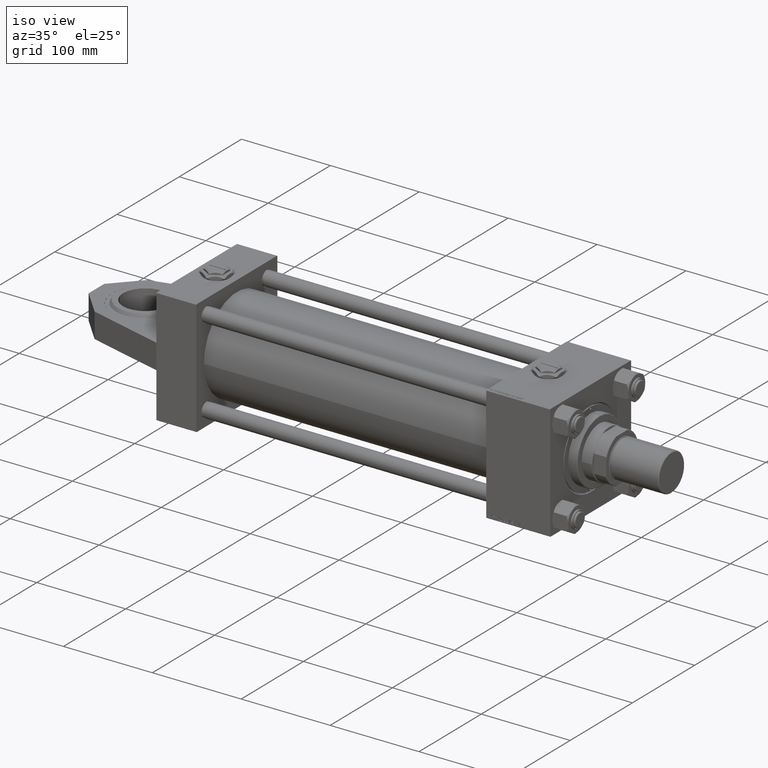
[diagram: clean part render]
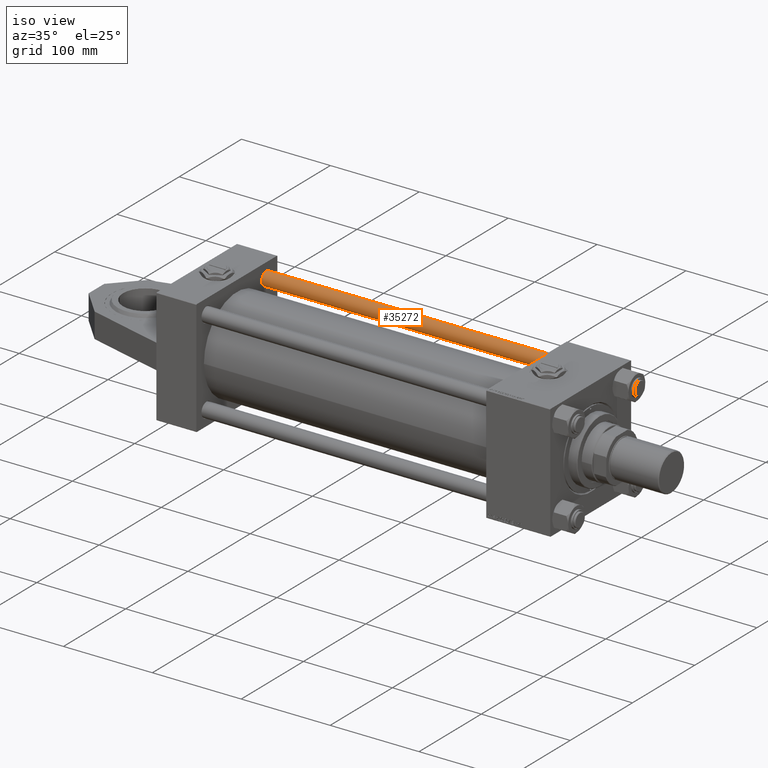
[diagram: same view with one face highlighted and labeled with its STEP entity id]
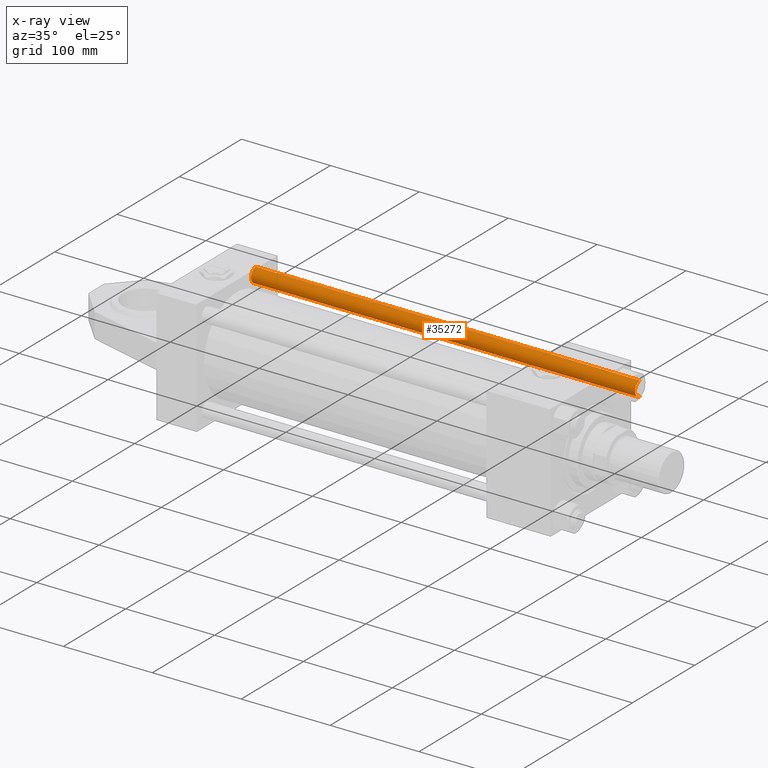
[diagram: x-ray of the same camera — body ghosted, the highlighted face saturated]
A machine part, iso view. The second image highlights one B-rep face of the part: STEP entity #35272.
The next image is the same camera in x-ray: the body ghosted, the highlighted face saturated — about 0% of this face is hidden behind the body in this view.
In plain terms, the highlighted cylindrical surface (edge-blend (fillet) strip) has radius 8 mm, axis along (1, 0, 0).
Its self-contained STEP definition (entity closure, byte-faithful):
#2589 = ORIENTED_EDGE ( 'NONE', *, *, #45665, .F. ) ;
#5396 = DIRECTION ( 'NONE',  ( 0.000000000000000000, 0.000000000000000000, -1.000000000000000000 ) ) ;
#7405 = ORIENTED_EDGE ( 'NONE', *, *, #20577, .T. ) ;
#7931 = LINE ( 'NONE', #36704, #45238 ) ;
#8052 = VERTEX_POINT ( 'NONE', #15845 ) ;
#8773 = ORIENTED_EDGE ( 'NONE', *, *, #21262, .T. ) ;
#9345 = EDGE_CURVE ( 'NONE', #8052, #28952, #7931, .T. ) ;
#9443 = AXIS2_PLACEMENT_3D ( 'NONE', #12034, #28967, #27922 ) ;
#9707 = VECTOR ( 'NONE', #28021, 1000.000000000000000 ) ;
#10401 = DIRECTION ( 'NONE',  ( -1.000000000000000000, 0.000000000000000000, 0.000000000000000000 ) ) ;
#12034 = CARTESIAN_POINT ( 'NONE',  ( 0.000000000000000000, 0.000000000000000000, 0.5000000000003335110 ) ) ;
#15790 = ORIENTED_EDGE ( 'NONE', *, *, #9345, .T. ) ;
#15845 = CARTESIAN_POINT ( 'NONE',  ( -8.000000000000000000, 0.000000000000000000, 432.5000000000001705 ) ) ;
#15945 = EDGE_LOOP ( 'NONE', ( #2589, #8773, #15790, #7405 ) ) ;
#16323 = AXIS2_PLACEMENT_3D ( 'NONE', #38208, #5396, #30626 ) ;
#18850 = CIRCLE ( 'NONE', #9443, 8.000000000000000000 ) ;
#20577 = EDGE_CURVE ( 'NONE', #28952, #33426, #18850, .T. ) ;
#21262 = EDGE_CURVE ( 'NONE', #38892, #8052, #41283, .T. ) ;
#26592 = CARTESIAN_POINT ( 'NONE',  ( -8.000000000000000000, 0.000000000000000000, 0.5000000000003335110 ) ) ;
#27922 = DIRECTION ( 'NONE',  ( 1.000000000000000000, 0.000000000000000000, 0.000000000000000000 ) ) ;
#28021 = DIRECTION ( 'NONE',  ( -0.000000000000000000, -0.000000000000000000, -1.000000000000000000 ) ) ;
#28952 = VERTEX_POINT ( 'NONE', #26592 ) ;
#28967 = DIRECTION ( 'NONE',  ( -0.000000000000000000, -0.000000000000000000, 1.000000000000000000 ) ) ;
#30568 = CYLINDRICAL_SURFACE ( 'NONE', #40291, 8.000000000000000000 ) ;
#30626 = DIRECTION ( 'NONE',  ( 1.000000000000000000, 0.000000000000000000, 0.000000000000000000 ) ) ;
#32352 = CARTESIAN_POINT ( 'NONE',  ( 8.000000000000000000, 9.797174393178823685E-16, 0.5000000000003335110 ) ) ;
#32867 = LINE ( 'NONE', #45239, #9707 ) ;
#33426 = VERTEX_POINT ( 'NONE', #32352 ) ;
#35272 = ADVANCED_FACE ( 'NONE', ( #35687 ), #30568, .T. ) ;
#35418 = CARTESIAN_POINT ( 'NONE',  ( 0.000000000000000000, 0.000000000000000000, 433.0000000000000000 ) ) ;
#35687 = FACE_OUTER_BOUND ( 'NONE', #15945, .T. ) ;
#36704 = CARTESIAN_POINT ( 'NONE',  ( -8.000000000000000000, 0.000000000000000000, 433.0000000000000000 ) ) ;
#36978 = DIRECTION ( 'NONE',  ( -0.000000000000000000, -0.000000000000000000, -1.000000000000000000 ) ) ;
#38208 = CARTESIAN_POINT ( 'NONE',  ( 0.000000000000000000, 0.000000000000000000, 432.5000000000001705 ) ) ;
#38892 = VERTEX_POINT ( 'NONE', #39386 ) ;
#39386 = CARTESIAN_POINT ( 'NONE',  ( 8.000000000000000000, 9.797174393178823685E-16, 432.5000000000001705 ) ) ;
#40291 = AXIS2_PLACEMENT_3D ( 'NONE', #35418, #46997, #10401 ) ;
#41283 = CIRCLE ( 'NONE', #16323, 8.000000000000000000 ) ;
#45238 = VECTOR ( 'NONE', #36978, 1000.000000000000000 ) ;
#45239 = CARTESIAN_POINT ( 'NONE',  ( 8.000000000000000000, 9.797174393178823685E-16, 433.0000000000000000 ) ) ;
#45665 = EDGE_CURVE ( 'NONE', #38892, #33426, #32867, .T. ) ;
#46997 = DIRECTION ( 'NONE',  ( -0.000000000000000000, -0.000000000000000000, -1.000000000000000000 ) ) ;